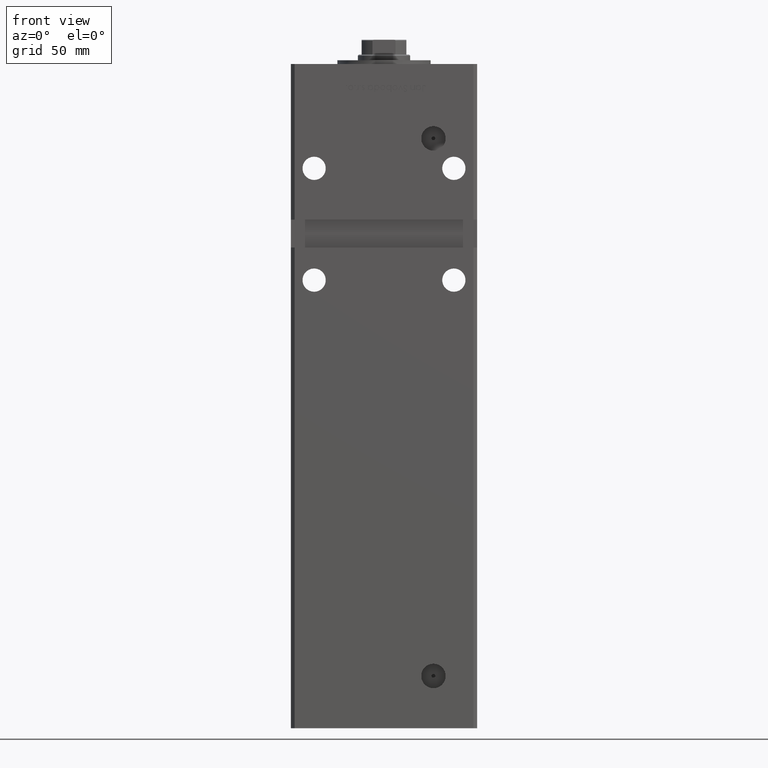
[diagram: clean part render]
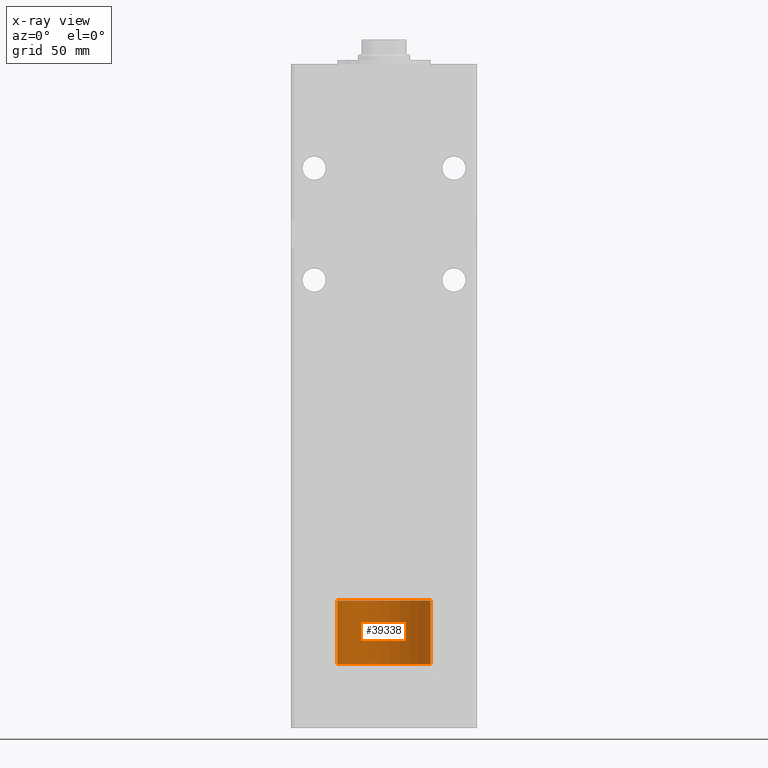
[diagram: x-ray — body ghosted, one internal face saturated and labeled with its STEP entity id]
A machine part, front view, then the same camera in x-ray: the body is ghosted and one INTERNAL B-rep face — a face not visible from any outside direction — is saturated and labeled: STEP entity #39338.
In plain terms, the highlighted cylindrical surface (partial cylindrical patch) has radius 25 mm, axis along (-0, -0, -1).
Its self-contained STEP definition (entity closure, byte-faithful):
#497 = ORIENTED_EDGE ( 'NONE', *, *, #12589, .T. ) ;
#1467 = DIRECTION ( 'NONE',  ( -0.000000000000000000, -0.000000000000000000, -1.000000000000000000 ) ) ;
#1904 = AXIS2_PLACEMENT_3D ( 'NONE', #9196, #1908, #30680 ) ;
#1908 = DIRECTION ( 'NONE',  ( -0.000000000000000000, -0.000000000000000000, -1.000000000000000000 ) ) ;
#1983 = VERTEX_POINT ( 'NONE', #38451 ) ;
#3326 = ORIENTED_EDGE ( 'NONE', *, *, #31876, .T. ) ;
#5762 = CARTESIAN_POINT ( 'NONE',  ( 25.00000000000000000, 3.061616997868383043E-15, 34.25000000000000000 ) ) ;
#8372 = CARTESIAN_POINT ( 'NONE',  ( 0.000000000000000000, 0.000000000000000000, 0.000000000000000000 ) ) ;
#9196 = CARTESIAN_POINT ( 'NONE',  ( 0.000000000000000000, 0.000000000000000000, 34.25000000000000000 ) ) ;
#9457 = FACE_OUTER_BOUND ( 'NONE', #17595, .T. ) ;
#10648 = DIRECTION ( 'NONE',  ( -0.000000000000000000, -0.000000000000000000, -1.000000000000000000 ) ) ;
#12589 = EDGE_CURVE ( 'NONE', #1983, #17533, #17346, .T. ) ;
#15202 = EDGE_CURVE ( 'NONE', #1983, #37342, #38752, .T. ) ;
#16429 = AXIS2_PLACEMENT_3D ( 'NONE', #8372, #53002, #45968 ) ;
#16472 = AXIS2_PLACEMENT_3D ( 'NONE', #47550, #22568, #23370 ) ;
#17346 = LINE ( 'NONE', #5762, #37820 ) ;
#17533 = VERTEX_POINT ( 'NONE', #17893 ) ;
#17595 = EDGE_LOOP ( 'NONE', ( #33787, #497, #3326, #46151 ) ) ;
#17893 = CARTESIAN_POINT ( 'NONE',  ( 25.00000000000000000, 3.061616997868383043E-15, 0.000000000000000000 ) ) ;
#19194 = VERTEX_POINT ( 'NONE', #21072 ) ;
#19747 = EDGE_CURVE ( 'NONE', #37342, #19194, #31332, .T. ) ;
#21072 = CARTESIAN_POINT ( 'NONE',  ( -25.00000000000000000, 0.000000000000000000, 0.000000000000000000 ) ) ;
#22568 = DIRECTION ( 'NONE',  ( 0.000000000000000000, 0.000000000000000000, 1.000000000000000000 ) ) ;
#23370 = DIRECTION ( 'NONE',  ( 1.000000000000000000, 0.000000000000000000, 0.000000000000000000 ) ) ;
#25839 = CYLINDRICAL_SURFACE ( 'NONE', #1904, 25.00000000000000000 ) ;
#27413 = CARTESIAN_POINT ( 'NONE',  ( -25.00000000000000000, 0.000000000000000000, 34.25000000000000000 ) ) ;
#29808 = CARTESIAN_POINT ( 'NONE',  ( -25.00000000000000000, 0.000000000000000000, 34.25000000000000000 ) ) ;
#30680 = DIRECTION ( 'NONE',  ( -1.000000000000000000, 0.000000000000000000, 0.000000000000000000 ) ) ;
#31332 = LINE ( 'NONE', #29808, #45756 ) ;
#31876 = EDGE_CURVE ( 'NONE', #17533, #19194, #50712, .T. ) ;
#33787 = ORIENTED_EDGE ( 'NONE', *, *, #15202, .F. ) ;
#37342 = VERTEX_POINT ( 'NONE', #27413 ) ;
#37820 = VECTOR ( 'NONE', #1467, 1000.000000000000000 ) ;
#38451 = CARTESIAN_POINT ( 'NONE',  ( 25.00000000000000000, 3.061616997868383043E-15, 34.25000000000000000 ) ) ;
#38752 = CIRCLE ( 'NONE', #16472, 25.00000000000000000 ) ;
#39338 = ADVANCED_FACE ( 'NONE', ( #9457 ), #25839, .T. ) ;
#45756 = VECTOR ( 'NONE', #10648, 1000.000000000000000 ) ;
#45968 = DIRECTION ( 'NONE',  ( 1.000000000000000000, 0.000000000000000000, 0.000000000000000000 ) ) ;
#46151 = ORIENTED_EDGE ( 'NONE', *, *, #19747, .F. ) ;
#47550 = CARTESIAN_POINT ( 'NONE',  ( 0.000000000000000000, 0.000000000000000000, 34.25000000000000000 ) ) ;
#50712 = CIRCLE ( 'NONE', #16429, 25.00000000000000000 ) ;
#53002 = DIRECTION ( 'NONE',  ( 0.000000000000000000, 0.000000000000000000, 1.000000000000000000 ) ) ;